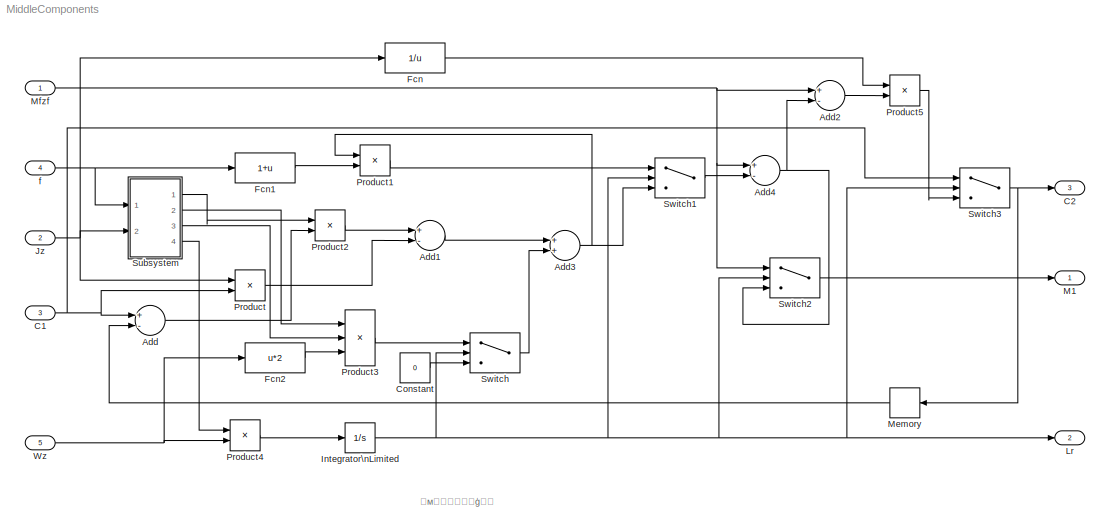
MODEL MiddleComponents
KIND model
BLOCK [Sum] Add
  InputSameDT = off
  Inputs = +-
  OutDataTypeStr = Inherit: Inherit via internal rule
  Ports = [2, 1]
  SID = 17
  SaturateOnIntegerOverflow = off
BLOCK [Sum] Add1
  InputSameDT = off
  Inputs = +-
  OutDataTypeStr = Inherit: Inherit via internal rule
  Ports = [2, 1]
  SID = 18
  SaturateOnIntegerOverflow = off
BLOCK [Sum] Add2
  InputSameDT = off
  Inputs = +-
  OutDataTypeStr = Inherit: Inherit via internal rule
  Ports = [2, 1]
  SID = 19
  SaturateOnIntegerOverflow = off
BLOCK [Sum] Add3
  InputSameDT = off
  OutDataTypeStr = Inherit: Inherit via internal rule
  Ports = [2, 1]
  SID = 20
  SaturateOnIntegerOverflow = off
BLOCK [Sum] Add4
  InputSameDT = off
  Inputs = +-
  OutDataTypeStr = Inherit: Inherit via internal rule
  Ports = [2, 1]
  SID = 21
  SaturateOnIntegerOverflow = off
BLOCK [Inport] C1
  IconDisplay = Port number
  Port = 3
  SID = 4
BLOCK [Outport] C2
  IconDisplay = Port number
  Port = 3
  SID = 30
BLOCK [Constant] Constant
  SID = 26
  Value = 0
BLOCK [Fcn] Fcn
  Expr = 1/u
  SID = 9
BLOCK [Fcn] Fcn1
  Expr = 1+u
  SID = 10
BLOCK [Fcn] Fcn2
  Expr = u*2
  SID = 32
BLOCK [Integrator] Integrator\nLimited
  LimitOutput = on
  LowerSaturationLimit = 0
  Ports = [1, 1]
  SID = 31
  UpperSaturationLimit = 1
BLOCK [Inport] Jz
  IconDisplay = Port number
  Port = 2
  SID = 3
BLOCK [Outport] Lr
  IconDisplay = Port number
  Port = 2
  SID = 29
BLOCK [Outport] M1
  IconDisplay = Port number
  SID = 28
BLOCK [Memory] Memory
  SID = 72
BLOCK [Inport] Mfzf
  IconDisplay = Port number
  SID = 1
BLOCK [Product] Product
  InputSameDT = off
  OutDataTypeStr = Inherit: Inherit via internal rule
  Ports = [2, 1]
  RndMeth = Floor
  SID = 11
  SaturateOnIntegerOverflow = off
BLOCK [Product] Product1
  InputSameDT = off
  OutDataTypeStr = Inherit: Inherit via internal rule
  Ports = [2, 1]
  RndMeth = Floor
  SID = 12
  SaturateOnIntegerOverflow = off
BLOCK [Product] Product2
  InputSameDT = off
  OutDataTypeStr = Inherit: Inherit via internal rule
  Ports = [2, 1]
  RndMeth = Floor
  SID = 14
  SaturateOnIntegerOverflow = off
BLOCK [Product] Product3
  InputSameDT = off
  Inputs = 3
  OutDataTypeStr = Inherit: Inherit via internal rule
  Ports = [3, 1]
  RndMeth = Floor
  SID = 13
  SaturateOnIntegerOverflow = off
BLOCK [Product] Product4
  InputSameDT = off
  OutDataTypeStr = Inherit: Inherit via internal rule
  Ports = [2, 1]
  RndMeth = Floor
  SID = 15
  SaturateOnIntegerOverflow = off
BLOCK [Product] Product5
  InputSameDT = off
  OutDataTypeStr = Inherit: Inherit via internal rule
  Ports = [2, 1]
  RndMeth = Floor
  SID = 16
  SaturateOnIntegerOverflow = off
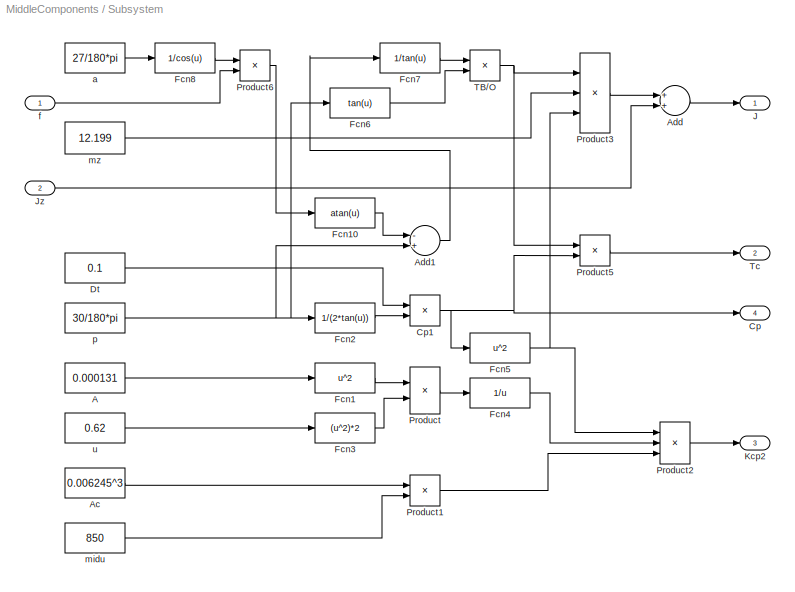
BLOCK [SubSystem] Subsystem
  Ports = [2, 4]
  RequestExecContextInheritance = off
  SID = 6
BLOCK [Constant] Subsystem/A
  SID = 40
  Value = 0.000131
BLOCK [Constant] Subsystem/Ac
  SID = 41
  Value = 0.006245^3
BLOCK [Sum] Subsystem/Add
  InputSameDT = off
  OutDataTypeStr = Inherit: Inherit via internal rule
  Ports = [2, 1]
  SID = 42
  SaturateOnIntegerOverflow = off
BLOCK [Sum] Subsystem/Add1
  InputSameDT = off
  Inputs = -+
  OutDataTypeStr = Inherit: Inherit via internal rule
  Ports = [2, 1]
  SID = 43
  SaturateOnIntegerOverflow = off
BLOCK [Outport] Subsystem/Cp
  IconDisplay = Port number
  Port = 4
  SID = 70
BLOCK [Product] Subsystem/Cp1
  InputSameDT = off
  OutDataTypeStr = Inherit: Inherit via internal rule
  Ports = [2, 1]
  SID = 44
  SaturateOnIntegerOverflow = off
BLOCK [Constant] Subsystem/Dt
  SID = 45
  Value = 0.1
BLOCK [Fcn] Subsystem/Fcn1
  Expr = u^2
  SID = 46
BLOCK [Fcn] Subsystem/Fcn10
  Expr = atan(u)
  SID = 47
BLOCK [Fcn] Subsystem/Fcn2
  Expr = 1/(2*tan(u))
  SID = 48
BLOCK [Fcn] Subsystem/Fcn3
  Expr = (u^2)*2
  SID = 49
BLOCK [Fcn] Subsystem/Fcn4
  Expr = 1/u
  SID = 50
BLOCK [Fcn] Subsystem/Fcn5
  Expr = u^2
  SID = 51
BLOCK [Fcn] Subsystem/Fcn6
  Expr = tan(u)
  SID = 52
BLOCK [Fcn] Subsystem/Fcn7
  Expr = 1/tan(u)
  SID = 53
BLOCK [Fcn] Subsystem/Fcn8
  Expr = 1/cos(u)
  SID = 54
BLOCK [Outport] Subsystem/J
  IconDisplay = Port number
  SID = 67
BLOCK [Inport] Subsystem/Jz
  IconDisplay = Port number
  Port = 2
  SID = 39
BLOCK [Outport] Subsystem/Kcp2
  IconDisplay = Port number
  Port = 3
  SID = 69
BLOCK [Product] Subsystem/Product
  InputSameDT = off
  OutDataTypeStr = Inherit: Inherit via internal rule
  Ports = [2, 1]
  SID = 55
  SaturateOnIntegerOverflow = off
BLOCK [Product] Subsystem/Product1
  InputSameDT = off
  OutDataTypeStr = Inherit: Inherit via internal rule
  Ports = [2, 1]
  SID = 56
  SaturateOnIntegerOverflow = off
BLOCK [Product] Subsystem/Product2
  InputSameDT = off
  Inputs = 3
  OutDataTypeStr = Inherit: Inherit via internal rule
  Ports = [3, 1]
  SID = 57
  SaturateOnIntegerOverflow = off
BLOCK [Product] Subsystem/Product3
  InputSameDT = off
  Inputs = 3
  OutDataTypeStr = Inherit: Inherit via internal rule
  Ports = [3, 1]
  SID = 58
  SaturateOnIntegerOverflow = off
BLOCK [Product] Subsystem/Product5
  InputSameDT = off
  OutDataTypeStr = Inherit: Inherit via internal rule
  Ports = [2, 1]
  SID = 59
  SaturateOnIntegerOverflow = off
BLOCK [Product] Subsystem/Product6
  InputSameDT = off
  OutDataTypeStr = Inherit: Inherit via internal rule
  Ports = [2, 1]
  SID = 60
  SaturateOnIntegerOverflow = off
BLOCK [Product] Subsystem/TB//O
  InputSameDT = off
  OutDataTypeStr = Inherit: Inherit via internal rule
  Ports = [2, 1]
  SID = 61
  SaturateOnIntegerOverflow = off
BLOCK [Outport] Subsystem/Tc
  IconDisplay = Port number
  Port = 2
  SID = 68
BLOCK [Constant] Subsystem/a
  SID = 62
  Value = 27/180*pi
BLOCK [Inport] Subsystem/f
  IconDisplay = Port number
  SID = 38
BLOCK [Constant] Subsystem/midu
  SID = 63
  Value = 850
BLOCK [Constant] Subsystem/mz
  SID = 64
  Value = 12.199
BLOCK [Constant] Subsystem/p
  SID = 65
  Value = 30/180*pi
BLOCK [Constant] Subsystem/u
  SID = 66
  Value = 0.62
BLOCK [Switch] Switch
  Criteria = u2 > Threshold
  InputSameDT = off
  SID = 22
  SaturateOnIntegerOverflow = off
BLOCK [Switch] Switch1
  Criteria = u2 > Threshold
  InputSameDT = off
  SID = 23
  SaturateOnIntegerOverflow = off
BLOCK [Switch] Switch2
  Criteria = u2 > Threshold
  InputSameDT = off
  SID = 24
  SaturateOnIntegerOverflow = off
BLOCK [Switch] Switch3
  Criteria = u2 > Threshold
  InputSameDT = off
  SID = 25
  SaturateOnIntegerOverflow = off
BLOCK [Inport] Wz
  IconDisplay = Port number
  Port = 5
  SID = 5
BLOCK [Inport] f
  IconDisplay = Port number
  Port = 4
  SID = 2
ANNOTATION (root): \n \n 中间件仿真模型
LINE Add1:1 -> Add3:1
LINE Add2:1 -> Product5:2
NET Add3:1 -> Product1:1, Switch1:3
NET Add4:1 -> Add2:2, Switch2:3
LINE Add:1 -> Product2:2
NET C1:1 -> Add:1, Product:2, Switch3:1
LINE Constant:1 -> Switch:3
LINE Fcn1:1 -> Product1:2
LINE Fcn2:1 -> Product3:3
LINE Fcn:1 -> Product5:1
NET Integrator\nLimited:1 -> Lr:1, Switch1:2, Switch2:2, Switch3:2, Switch:2
NET Jz:1 -> Fcn:1, Product:1, Subsystem:2
LINE Memory:1 -> Add:2
NET Mfzf:1 -> Add2:1, Add4:1, Switch2:1
LINE Product1:1 -> Switch1:1
LINE Product2:1 -> Add1:1
LINE Product3:1 -> Switch:1
LINE Product4:1 -> Integrator\nLimited:1
LINE Product5:1 -> Switch3:3
LINE Product:1 -> Add1:2
LINE Subsystem/A:1 -> Subsystem/Fcn1:1
LINE Subsystem/Ac:1 -> Subsystem/Product1:1
LINE Subsystem/Add1:1 -> Subsystem/Fcn7:1
LINE Subsystem/Add:1 -> Subsystem/J:1
NET Subsystem/Cp1:1 -> Subsystem/Cp:1, Subsystem/Fcn5:1, Subsystem/Product5:2
LINE Subsystem/Dt:1 -> Subsystem/Cp1:1
LINE Subsystem/Fcn10:1 -> Subsystem/Add1:1
LINE Subsystem/Fcn1:1 -> Subsystem/Product:1
LINE Subsystem/Fcn2:1 -> Subsystem/Cp1:2
LINE Subsystem/Fcn3:1 -> Subsystem/Product:2
LINE Subsystem/Fcn4:1 -> Subsystem/Product2:2
NET Subsystem/Fcn5:1 -> Subsystem/Product2:1, Subsystem/Product3:3
LINE Subsystem/Fcn6:1 -> Subsystem/TB//O:2
LINE Subsystem/Fcn7:1 -> Subsystem/TB//O:1
LINE Subsystem/Fcn8:1 -> Subsystem/Product6:1
LINE Subsystem/Jz:1 -> Subsystem/Add:2
LINE Subsystem/Product1:1 -> Subsystem/Product2:3
LINE Subsystem/Product2:1 -> Subsystem/Kcp2:1
LINE Subsystem/Product3:1 -> Subsystem/Add:1
LINE Subsystem/Product5:1 -> Subsystem/Tc:1
LINE Subsystem/Product6:1 -> Subsystem/Fcn10:1
LINE Subsystem/Product:1 -> Subsystem/Fcn4:1
NET Subsystem/TB//O:1 -> Subsystem/Product3:1, Subsystem/Product5:1
LINE Subsystem/a:1 -> Subsystem/Fcn8:1
LINE Subsystem/f:1 -> Subsystem/Product6:2
LINE Subsystem/midu:1 -> Subsystem/Product1:2
LINE Subsystem/mz:1 -> Subsystem/Product3:2
NET Subsystem/p:1 -> Subsystem/Add1:2, Subsystem/Fcn2:1, Subsystem/Fcn6:1
LINE Subsystem/u:1 -> Subsystem/Fcn3:1
LINE Subsystem:1 -> Product2:1
LINE Subsystem:2 -> Product3:1
LINE Subsystem:3 -> Product3:2
LINE Subsystem:4 -> Product4:1
LINE Switch1:1 -> Add4:2
LINE Switch2:1 -> M1:1
NET Switch3:1 -> C2:1, Memory:1
LINE Switch:1 -> Add3:2
NET Wz:1 -> Fcn2:1, Product4:2
NET f:1 -> Fcn1:1, Subsystem:1
note: NET lines group one-source signal fan-out (src -> all destinations, sorted); 1:1 wires keep LINE
